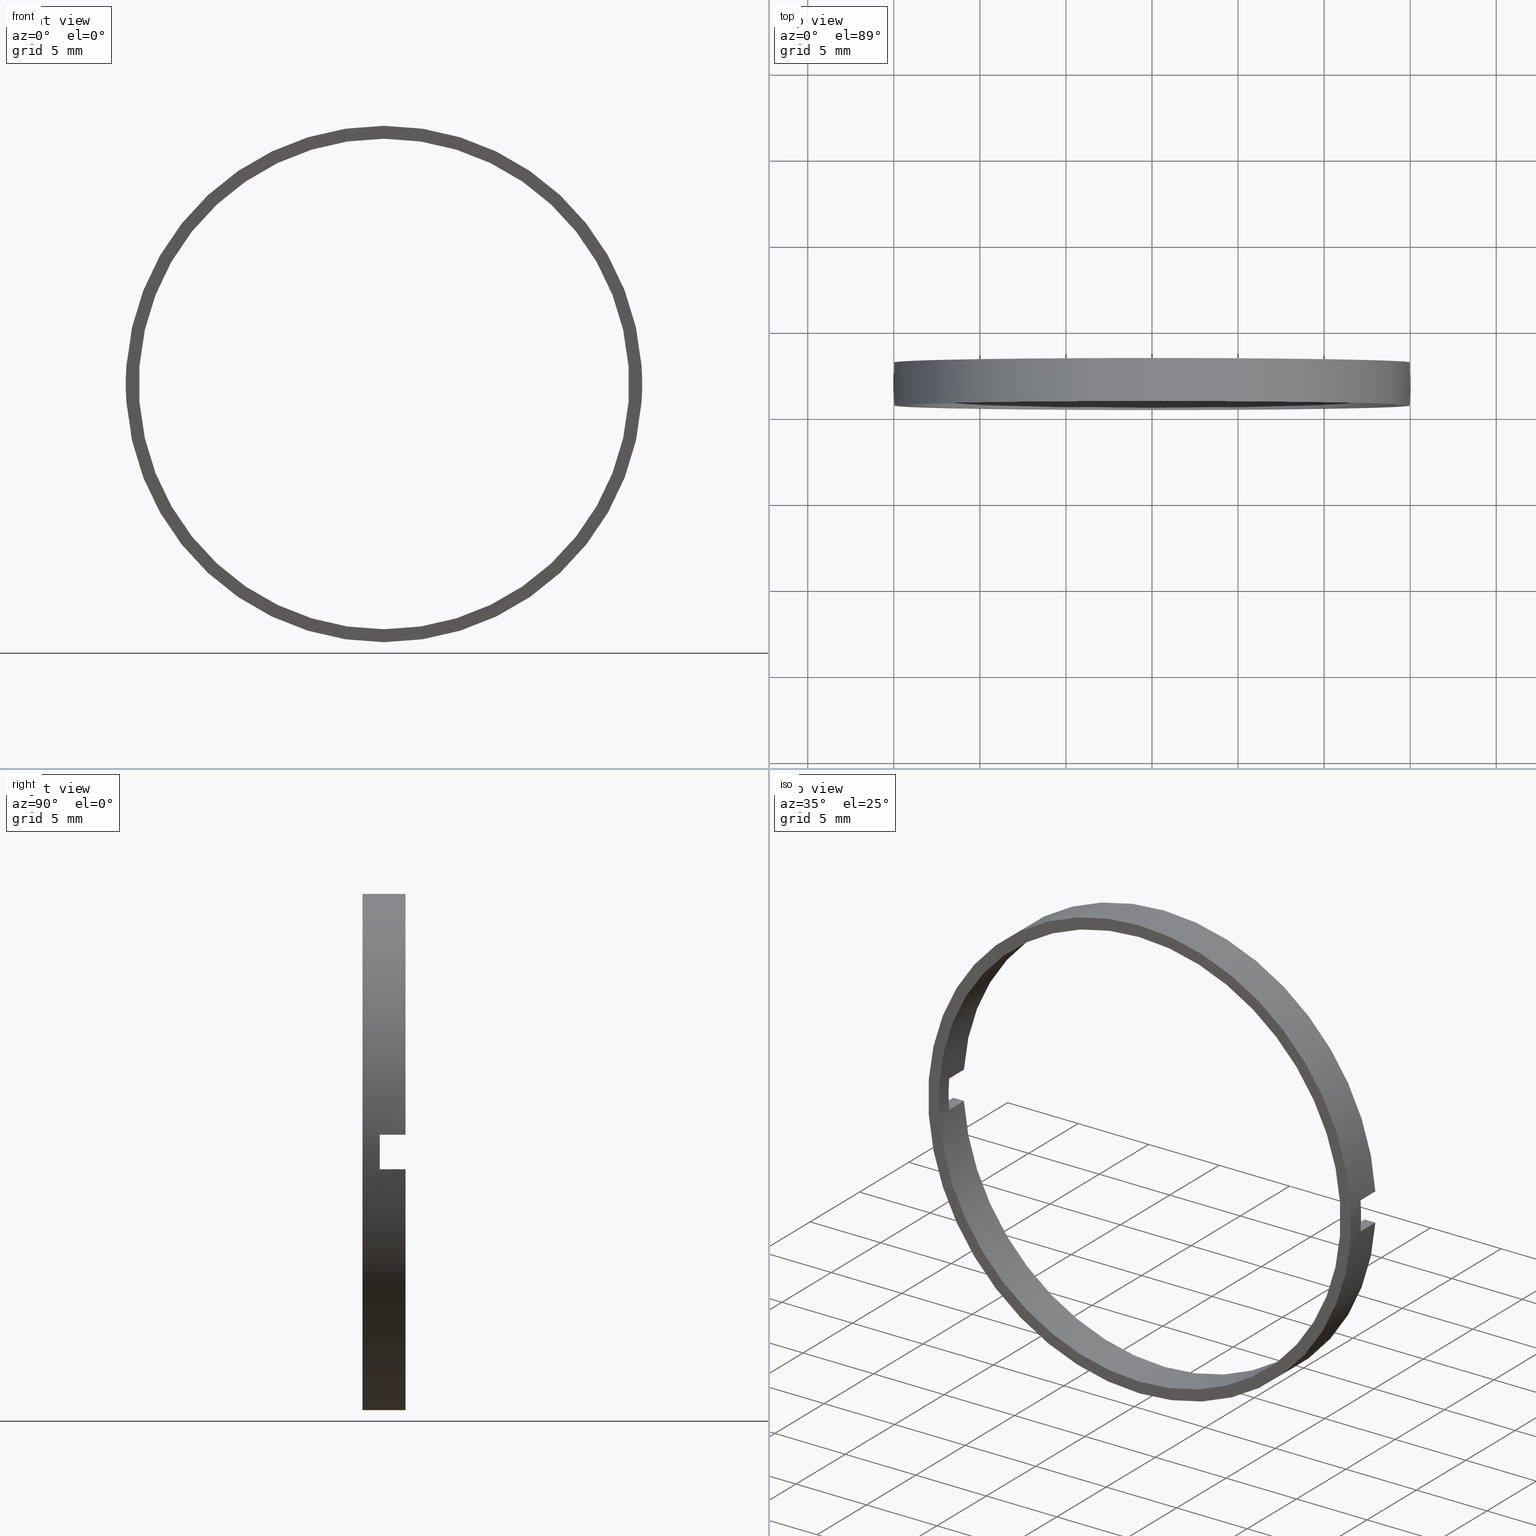
[diagram: canonical four-view strip — front | top / right | iso, engineering-drawing reading convention]
A machine part, canonical four-view strip (front | top / right | iso — engineering-drawing reading convention). The complete STEP part file that produces these views, byte-faithful:
ISO-10303-21;
HEADER;
FILE_DESCRIPTION (( 'STEP AP214' ),
    '1' );
FILE_NAME ('514007.STEP',
    '2019-09-18T06:27:31',
    ( '' ),
    ( '' ),
    'SwSTEP 2.0',
    'SolidWorks 2016',
    '' );
FILE_SCHEMA (( 'AUTOMOTIVE_DESIGN' ));
ENDSEC;

DATA;
#1 = EDGE_CURVE ( 'NONE', #409, #463, #205, .T. ) ;
#2 = AXIS2_PLACEMENT_3D ( 'NONE', #132, #398, #504 ) ;
#3 = CARTESIAN_POINT ( 'NONE',  ( 0.0000000000000000000, -4.464249787179428900, 0.0000000000000000000 ) ) ;
#4 = PLANE ( 'NONE',  #155 ) ;
#5 = EDGE_LOOP ( 'NONE', ( #47, #425, #215, #98, #258, #400, #200, #352 ) ) ;
#6 = ORIENTED_EDGE ( 'NONE', *, *, #372, .T. ) ;
#7 = CARTESIAN_POINT ( 'NONE',  ( 0.0000000000000000000, -1.964249787179434000, 0.0000000000000000000 ) ) ;
#8 =( GEOMETRIC_REPRESENTATION_CONTEXT ( 3 ) GLOBAL_UNCERTAINTY_ASSIGNED_CONTEXT ( ( #176 ) ) GLOBAL_UNIT_ASSIGNED_CONTEXT ( ( #211, #182, #253 ) ) REPRESENTATION_CONTEXT ( 'NONE', 'WORKASPACE' ) );
#9 = EDGE_CURVE ( 'NONE', #313, #32, #411, .T. ) ;
#10 = CIRCLE ( 'NONE', #138, 14.25000000000000700 ) ;
#11 = CARTESIAN_POINT ( 'NONE',  ( 14.96662954709577200, 56.26084262701361600, 1.000000000000000000 ) ) ;
#12 = DIRECTION ( 'NONE',  ( 0.0000000000000000000, 0.0000000000000000000, 1.000000000000000000 ) ) ;
#13 = FILL_AREA_STYLE_COLOUR ( '', #22 ) ;
#14 = CARTESIAN_POINT ( 'NONE',  ( 14.21486897582950500, 56.26084262701361600, -1.000000000000000000 ) ) ;
#15 = PLANE ( 'NONE',  #378 ) ;
#16 = EDGE_LOOP ( 'NONE', ( #266, #489, #267, #38, #197, #242 ) ) ;
#17 = CARTESIAN_POINT ( 'NONE',  ( -26.85254027261461800, -3.464249787179431100, -1.000000000000000000 ) ) ;
#18 = ADVANCED_FACE ( 'NONE', ( #239 ), #15, .T. ) ;
#19 = CARTESIAN_POINT ( 'NONE',  ( 0.0000000000000000000, -3.464249787179431100, 0.0000000000000000000 ) ) ;
#20 =( NAMED_UNIT ( * ) PLANE_ANGLE_UNIT ( ) SI_UNIT ( $, .RADIAN. ) );
#21 = FACE_OUTER_BOUND ( 'NONE', #16, .T. ) ;
#22 = COLOUR_RGB ( '',1.000000000000000000, 1.000000000000000000, 1.000000000000000000 ) ;
#23 = VERTEX_POINT ( 'NONE', #315 ) ;
#24 = CIRCLE ( 'NONE', #81, 14.25000000000000700 ) ;
#25 = DIRECTION ( 'NONE',  ( 0.0000000000000000000, 1.000000000000000000, 0.0000000000000000000 ) ) ;
#26 = VECTOR ( 'NONE', #280, 1000.000000000000000 ) ;
#27 = PRESENTATION_STYLE_ASSIGNMENT (( #165 ) ) ;
#28 =( NAMED_UNIT ( * ) SI_UNIT ( $, .STERADIAN. ) SOLID_ANGLE_UNIT ( ) );
#29 = VERTEX_POINT ( 'NONE', #399 ) ;
#30 = PRESENTATION_LAYER_ASSIGNMENT (  '', '', ( #226 ) ) ;
#31 = EDGE_CURVE ( 'NONE', #291, #50, #198, .T. ) ;
#32 = VERTEX_POINT ( 'NONE', #247 ) ;
#33 = CARTESIAN_POINT ( 'NONE',  ( 0.0000000000000000000, 56.26084262701361600, 0.0000000000000000000 ) ) ;
#34 = EDGE_CURVE ( 'NONE', #463, #409, #164, .T. ) ;
#35 = AXIS2_PLACEMENT_3D ( 'NONE', #459, #264, #149 ) ;
#36 = CYLINDRICAL_SURFACE ( 'NONE', #263, 14.25000000000000700 ) ;
#37 = CARTESIAN_POINT ( 'NONE',  ( -14.96662954709577100, -3.464249787179428400, -0.9999999999999995600 ) ) ;
#38 = ORIENTED_EDGE ( 'NONE', *, *, #77, .F. ) ;
#39 = AXIS2_PLACEMENT_3D ( 'NONE', #147, #416, #326 ) ;
#40 = VECTOR ( 'NONE', #442, 1000.000000000000000 ) ;
#41 = EDGE_CURVE ( 'NONE', #23, #32, #469, .T. ) ;
#42 = ORIENTED_EDGE ( 'NONE', *, *, #322, .F. ) ;
#43 = EDGE_CURVE ( 'NONE', #63, #203, #346, .T. ) ;
#44 = CIRCLE ( 'NONE', #57, 15.00000000000000700 ) ;
#45 = DIRECTION ( 'NONE',  ( 0.0000000000000000000, 0.0000000000000000000, 1.000000000000000000 ) ) ;
#46 = ORIENTED_EDGE ( 'NONE', *, *, #380, .T. ) ;
#47 = ORIENTED_EDGE ( 'NONE', *, *, #380, .F. ) ;
#48 = CARTESIAN_POINT ( 'NONE',  ( -26.85254027261461800, -3.464249787179431100, -1.000000000000000000 ) ) ;
#49 = DIRECTION ( 'NONE',  ( 0.0000000000000000000, -0.0000000000000000000, -1.000000000000000000 ) ) ;
#50 = VERTEX_POINT ( 'NONE', #51 ) ;
#51 = CARTESIAN_POINT ( 'NONE',  ( 0.0000000000000000000, -1.964249787179434000, 14.25000000000000700 ) ) ;
#52 = DIRECTION ( 'NONE',  ( 0.0000000000000000000, 0.0000000000000000000, 1.000000000000000000 ) ) ;
#53 = EDGE_CURVE ( 'NONE', #194, #108, #302, .T. ) ;
#54 = CARTESIAN_POINT ( 'NONE',  ( -26.85254027261461800, -1.964249787179430900, -1.000000000000000000 ) ) ;
#55 = COLOUR_RGB ( '',1.000000000000000000, 1.000000000000000000, 1.000000000000000000 ) ;
#56 = EDGE_CURVE ( 'NONE', #365, #308, #433, .T. ) ;
#57 = AXIS2_PLACEMENT_3D ( 'NONE', #334, #359, #52 ) ;
#58 = FILL_AREA_STYLE ('',( #467 ) ) ;
#59 = CARTESIAN_POINT ( 'NONE',  ( 0.0000000000000000000, -3.464249787179428400, 0.0000000000000000000 ) ) ;
#60 = DIRECTION ( 'NONE',  ( 0.0000000000000000000, -0.0000000000000000000, -1.000000000000000000 ) ) ;
#61 = UNCERTAINTY_MEASURE_WITH_UNIT (LENGTH_MEASURE( 1.000000000000000100E-005 ), #257, 'distance_accuracy_value', 'NONE');
#62 = APPLICATION_CONTEXT ( 'automotive_design' ) ;
#63 = VERTEX_POINT ( 'NONE', #169 ) ;
#64 = DIRECTION ( 'NONE',  ( -0.0000000000000000000, 1.000000000000000000, -0.0000000000000000000 ) ) ;
#65 = DIRECTION ( 'NONE',  ( 0.0000000000000000000, 0.0000000000000000000, 1.000000000000000000 ) ) ;
#66 = CARTESIAN_POINT ( 'NONE',  ( 14.21486897582950300, -3.464249787179428400, -0.9999999999999995600 ) ) ;
#67 = LINE ( 'NONE', #259, #344 ) ;
#68 = CARTESIAN_POINT ( 'NONE',  ( 14.21486897582950300, -3.464249787179428400, 0.9999999999999995600 ) ) ;
#69 = DIRECTION ( 'NONE',  ( 1.000000000000000000, 0.0000000000000000000, 0.0000000000000000000 ) ) ;
#70 = CARTESIAN_POINT ( 'NONE',  ( -26.85254027261461800, -3.464249787179431100, 1.000000000000000000 ) ) ;
#71 = ORIENTED_EDGE ( 'NONE', *, *, #9, .T. ) ;
#72 = MECHANICAL_DESIGN_GEOMETRIC_PRESENTATION_REPRESENTATION (  '', ( #465 ), #335 ) ;
#73 = FACE_OUTER_BOUND ( 'NONE', #395, .T. ) ;
#74 = ORIENTED_EDGE ( 'NONE', *, *, #110, .F. ) ;
#75 = EDGE_CURVE ( 'NONE', #379, #291, #256, .T. ) ;
#76 = FACE_OUTER_BOUND ( 'NONE', #5, .T. ) ;
#77 = EDGE_CURVE ( 'NONE', #50, #63, #24, .T. ) ;
#78 = PRODUCT_DEFINITION_FORMATION_WITH_SPECIFIED_SOURCE ( '�κ�', '', #167, .NOT_KNOWN. ) ;
#79 = AXIS2_PLACEMENT_3D ( 'NONE', #268, #25, #65 ) ;
#80 = ORIENTED_EDGE ( 'NONE', *, *, #303, .F. ) ;
#81 = AXIS2_PLACEMENT_3D ( 'NONE', #7, #347, #12 ) ;
#82 = LINE ( 'NONE', #166, #196 ) ;
#83 = ORIENTED_EDGE ( 'NONE', *, *, #301, .F. ) ;
#84 = SURFACE_SIDE_STYLE ('',( #119 ) ) ;
#85 = ORIENTED_EDGE ( 'NONE', *, *, #159, .T. ) ;
#86 = EDGE_CURVE ( 'NONE', #379, #152, #10, .T. ) ;
#87 = DIRECTION ( 'NONE',  ( 0.0000000000000000000, -1.000000000000000000, 0.0000000000000000000 ) ) ;
#88 = EDGE_LOOP ( 'NONE', ( #387, #502, #330, #145 ) ) ;
#89 = PLANE ( 'NONE',  #356 ) ;
#90 = SURFACE_STYLE_USAGE ( .BOTH. , #448 ) ;
#91 = DIRECTION ( 'NONE',  ( -0.0000000000000000000, 1.000000000000000000, -0.0000000000000000000 ) ) ;
#92 = FILL_AREA_STYLE ('',( #288 ) ) ;
#93 = MECHANICAL_DESIGN_GEOMETRIC_PRESENTATION_REPRESENTATION (  '', ( #226 ), #345 ) ;
#94 = EDGE_LOOP ( 'NONE', ( #121, #438, #449, #451 ) ) ;
#95 = DIRECTION ( 'NONE',  ( 0.0000000000000000000, 0.0000000000000000000, 1.000000000000000000 ) ) ;
#96 = FACE_BOUND ( 'NONE', #342, .T. ) ;
#97 = ADVANCED_FACE ( 'NONE', ( #218 ), #4, .F. ) ;
#98 = ORIENTED_EDGE ( 'NONE', *, *, #190, .T. ) ;
#99 = DIRECTION ( 'NONE',  ( -0.0000000000000000000, 1.000000000000000000, -0.0000000000000000000 ) ) ;
#100 = CARTESIAN_POINT ( 'NONE',  ( 0.0000000000000000000, 0.0000000000000000000, 0.0000000000000000000 ) ) ;
#101 = EDGE_LOOP ( 'NONE', ( #369, #363, #296, #116 ) ) ;
#102 = CARTESIAN_POINT ( 'NONE',  ( 14.96662954709577200, 56.26084262701361600, -1.000000000000000000 ) ) ;
#103 = CARTESIAN_POINT ( 'NONE',  ( 0.0000000000000000000, 56.26084262701361600, 0.0000000000000000000 ) ) ;
#104 = STYLED_ITEM ( 'NONE', ( #27 ), #255 ) ;
#105 = DIRECTION ( 'NONE',  ( 0.0000000000000000000, 0.0000000000000000000, 1.000000000000000000 ) ) ;
#106 = EDGE_CURVE ( 'NONE', #209, #313, #299, .T. ) ;
#107 = CARTESIAN_POINT ( 'NONE',  ( -14.21486897582950500, 56.26084262701361600, -1.000000000000000000 ) ) ;
#108 = VERTEX_POINT ( 'NONE', #276 ) ;
#109 = DIRECTION ( 'NONE',  ( -0.0000000000000000000, 1.000000000000000000, -0.0000000000000000000 ) ) ;
#110 = EDGE_CURVE ( 'NONE', #339, #454, #143, .T. ) ;
#111 = AXIS2_PLACEMENT_3D ( 'NONE', #185, #217, #222 ) ;
#112 = DIRECTION ( 'NONE',  ( 1.000000000000000000, 0.0000000000000000000, 0.0000000000000000000 ) ) ;
#113 = LINE ( 'NONE', #285, #336 ) ;
#114 = ORIENTED_EDGE ( 'NONE', *, *, #161, .F. ) ;
#115 = MECHANICAL_DESIGN_GEOMETRIC_PRESENTATION_REPRESENTATION (  '', ( #325 ), #158 ) ;
#116 = ORIENTED_EDGE ( 'NONE', *, *, #260, .T. ) ;
#117 = AXIS2_PLACEMENT_3D ( 'NONE', #283, #91, #441 ) ;
#118 = LINE ( 'NONE', #208, #417 ) ;
#119 = SURFACE_STYLE_FILL_AREA ( #58 ) ;
#120 = PLANE ( 'NONE',  #317 ) ;
#121 = ORIENTED_EDGE ( 'NONE', *, *, #260, .F. ) ;
#122 = AXIS2_PLACEMENT_3D ( 'NONE', #100, #214, #353 ) ;
#123 = VECTOR ( 'NONE', #435, 1000.000000000000000 ) ;
#124 = CARTESIAN_POINT ( 'NONE',  ( 14.25000000000000700, -1.964249787179430900, 0.0000000000000000000 ) ) ;
#125 = FACE_OUTER_BOUND ( 'NONE', #137, .T. ) ;
#126 = PLANE ( 'NONE',  #371 ) ;
#127 = CLOSED_SHELL ( 'NONE', ( #286, #450, #445, #479, #175, #316, #250, #358, #404, #361, #97, #212, #18 ) ) ;
#128 = DIRECTION ( 'NONE',  ( 1.000000000000000000, 0.0000000000000000000, 0.0000000000000000000 ) ) ;
#129 = ORIENTED_EDGE ( 'NONE', *, *, #294, .F. ) ;
#130 =( NAMED_UNIT ( * ) PLANE_ANGLE_UNIT ( ) SI_UNIT ( $, .RADIAN. ) );
#131 = EDGE_CURVE ( 'NONE', #194, #50, #82, .T. ) ;
#132 = CARTESIAN_POINT ( 'NONE',  ( 0.0000000000000000000, -4.464249787179428900, 0.0000000000000000000 ) ) ;
#133 = DIRECTION ( 'NONE',  ( -0.0000000000000000000, 1.000000000000000000, -0.0000000000000000000 ) ) ;
#134 = FACE_OUTER_BOUND ( 'NONE', #88, .T. ) ;
#135 = DIRECTION ( 'NONE',  ( -1.000000000000000000, -0.0000000000000000000, -0.0000000000000000000 ) ) ;
#136 = DIRECTION ( 'NONE',  ( 0.0000000000000000000, 0.0000000000000000000, 1.000000000000000000 ) ) ;
#137 = EDGE_LOOP ( 'NONE', ( #482, #186 ) ) ;
#138 = AXIS2_PLACEMENT_3D ( 'NONE', #475, #274, #45 ) ;
#139 = ORIENTED_EDGE ( 'NONE', *, *, #312, .F. ) ;
#140 = CARTESIAN_POINT ( 'NONE',  ( 0.0000000000000000000, -1.964249787179434000, 15.00000000000000700 ) ) ;
#141 = VECTOR ( 'NONE', #284, 1000.000000000000000 ) ;
#142 = SURFACE_SIDE_STYLE ('',( #390 ) ) ;
#143 = CIRCLE ( 'NONE', #419, 15.00000000000000700 ) ;
#144 = DIRECTION ( 'NONE',  ( 0.0000000000000000000, 0.0000000000000000000, 1.000000000000000000 ) ) ;
#145 = ORIENTED_EDGE ( 'NONE', *, *, #303, .T. ) ;
#146 = DIRECTION ( 'NONE',  ( -0.0000000000000000000, 1.000000000000000000, -0.0000000000000000000 ) ) ;
#147 = CARTESIAN_POINT ( 'NONE',  ( 14.25000000000000700, -4.464249787179429800, 0.0000000000000000000 ) ) ;
#148 = LINE ( 'NONE', #453, #333 ) ;
#149 = DIRECTION ( 'NONE',  ( 0.0000000000000000000, 0.0000000000000000000, 1.000000000000000000 ) ) ;
#150 = PLANE ( 'NONE',  #421 ) ;
#151 = SURFACE_STYLE_FILL_AREA ( #483 ) ;
#152 = VERTEX_POINT ( 'NONE', #350 ) ;
#153 = CARTESIAN_POINT ( 'NONE',  ( 1.836970198721030800E-015, 56.26084262701361600, -15.00000000000000700 ) ) ;
#154 = ORIENTED_EDGE ( 'NONE', *, *, #75, .F. ) ;
#155 = AXIS2_PLACEMENT_3D ( 'NONE', #243, #204, #128 ) ;
#156 = FACE_OUTER_BOUND ( 'NONE', #94, .T. ) ;
#157 = VERTEX_POINT ( 'NONE', #309 ) ;
#158 =( GEOMETRIC_REPRESENTATION_CONTEXT ( 3 ) GLOBAL_UNCERTAINTY_ASSIGNED_CONTEXT ( ( #413 ) ) GLOBAL_UNIT_ASSIGNED_CONTEXT ( ( #281, #130, #254 ) ) REPRESENTATION_CONTEXT ( 'NONE', 'WORKASPACE' ) );
#159 = EDGE_CURVE ( 'NONE', #318, #203, #183, .T. ) ;
#160 = CIRCLE ( 'NONE', #271, 15.00000000000000700 ) ;
#161 = EDGE_CURVE ( 'NONE', #365, #454, #341, .T. ) ;
#162 = VERTEX_POINT ( 'NONE', #306 ) ;
#163 = DIRECTION ( 'NONE',  ( 0.0000000000000000000, 0.0000000000000000000, 1.000000000000000000 ) ) ;
#164 = CIRCLE ( 'NONE', #224, 15.00000000000000700 ) ;
#165 = SURFACE_STYLE_USAGE ( .BOTH. , #84 ) ;
#166 = CARTESIAN_POINT ( 'NONE',  ( 0.0000000000000000000, 56.26084262701361600, 14.25000000000000700 ) ) ;
#167 = PRODUCT ( '514007', '514007', '', ( #484 ) ) ;
#168 = DIRECTION ( 'NONE',  ( -1.000000000000000000, 0.0000000000000000000, -0.0000000000000000000 ) ) ;
#169 = CARTESIAN_POINT ( 'NONE',  ( 14.21486897582950300, -1.964249787179434000, 0.9999999999999995600 ) ) ;
#170 = CARTESIAN_POINT ( 'NONE',  ( 0.0000000000000000000, -4.464249787179428900, 0.0000000000000000000 ) ) ;
#171 = CIRCLE ( 'NONE', #35, 14.25000000000000700 ) ;
#172 = DIRECTION ( 'NONE',  ( -0.0000000000000000000, 1.000000000000000000, -0.0000000000000000000 ) ) ;
#173 = DIRECTION ( 'NONE',  ( 0.0000000000000000000, -0.0000000000000000000, 1.000000000000000000 ) ) ;
#174 =( LENGTH_UNIT ( ) NAMED_UNIT ( * ) SI_UNIT ( .MILLI., .METRE. ) );
#175 = ADVANCED_FACE ( 'NONE', ( #73 ), #120, .F. ) ;
#176 = UNCERTAINTY_MEASURE_WITH_UNIT (LENGTH_MEASURE( 1.000000000000000100E-005 ), #211, 'distance_accuracy_value', 'NONE');
#177 = DIRECTION ( 'NONE',  ( 0.0000000000000000000, -1.000000000000000000, 0.0000000000000000000 ) ) ;
#178 = EDGE_CURVE ( 'NONE', #318, #209, #381, .T. ) ;
#179 = PRODUCT_DEFINITION_CONTEXT ( 'detailed design', #444, 'design' ) ;
#180 = ORIENTED_EDGE ( 'NONE', *, *, #216, .T. ) ;
#181 = DIRECTION ( 'NONE',  ( -0.0000000000000000000, -1.000000000000000000, -0.0000000000000000000 ) ) ;
#182 =( NAMED_UNIT ( * ) PLANE_ANGLE_UNIT ( ) SI_UNIT ( $, .RADIAN. ) );
#183 = LINE ( 'NONE', #11, #26 ) ;
#184 = CARTESIAN_POINT ( 'NONE',  ( 14.96662954709577100, -3.464249787179428400, -0.9999999999999995600 ) ) ;
#185 = CARTESIAN_POINT ( 'NONE',  ( 0.0000000000000000000, -1.964249787179434000, 0.0000000000000000000 ) ) ;
#186 = ORIENTED_EDGE ( 'NONE', *, *, #1, .F. ) ;
#187 = DIRECTION ( 'NONE',  ( 0.0000000000000000000, 0.0000000000000000000, -1.000000000000000000 ) ) ;
#188 = CARTESIAN_POINT ( 'NONE',  ( 0.0000000000000000000, -4.464249787179428900, 14.25000000000000700 ) ) ;
#189 = CYLINDRICAL_SURFACE ( 'NONE', #245, 14.25000000000000700 ) ;
#190 = EDGE_CURVE ( 'NONE', #29, #152, #436, .T. ) ;
#191 = DIRECTION ( 'NONE',  ( 0.0000000000000000000, 0.0000000000000000000, 1.000000000000000000 ) ) ;
#192 = EDGE_CURVE ( 'NONE', #339, #498, #202, .T. ) ;
#193 = DIRECTION ( 'NONE',  ( 1.000000000000000000, 0.0000000000000000000, 0.0000000000000000000 ) ) ;
#194 = VERTEX_POINT ( 'NONE', #188 ) ;
#195 = DIRECTION ( 'NONE',  ( -0.0000000000000000000, 1.000000000000000000, -0.0000000000000000000 ) ) ;
#196 = VECTOR ( 'NONE', #396, 1000.000000000000000 ) ;
#197 = ORIENTED_EDGE ( 'NONE', *, *, #31, .F. ) ;
#198 = CIRCLE ( 'NONE', #117, 14.25000000000000700 ) ;
#199 = VECTOR ( 'NONE', #109, 1000.000000000000000 ) ;
#200 = ORIENTED_EDGE ( 'NONE', *, *, #31, .T. ) ;
#201 = CARTESIAN_POINT ( 'NONE',  ( 0.0000000000000000000, -3.464249787179428400, 0.0000000000000000000 ) ) ;
#202 = LINE ( 'NONE', #373, #231 ) ;
#203 = VERTEX_POINT ( 'NONE', #332 ) ;
#204 = DIRECTION ( 'NONE',  ( -0.0000000000000000000, 0.0000000000000000000, 1.000000000000000000 ) ) ;
#205 = CIRCLE ( 'NONE', #2, 15.00000000000000700 ) ;
#206 = DIRECTION ( 'NONE',  ( 0.0000000000000000000, -1.000000000000000000, 0.0000000000000000000 ) ) ;
#207 = CARTESIAN_POINT ( 'NONE',  ( -14.96662954709577100, -3.464249787179428400, 0.9999999999999995600 ) ) ;
#208 = CARTESIAN_POINT ( 'NONE',  ( 0.0000000000000000000, 56.26084262701361600, 15.00000000000000700 ) ) ;
#209 = VERTEX_POINT ( 'NONE', #184 ) ;
#210 = CARTESIAN_POINT ( 'NONE',  ( -14.96662954709577600, -1.964249787179430900, -1.000000000000000000 ) ) ;
#211 =( LENGTH_UNIT ( ) NAMED_UNIT ( * ) SI_UNIT ( .MILLI., .METRE. ) );
#212 = ADVANCED_FACE ( 'NONE', ( #156 ), #487, .F. ) ;
#213 = DIRECTION ( 'NONE',  ( -0.0000000000000000000, 1.000000000000000000, -0.0000000000000000000 ) ) ;
#214 = DIRECTION ( 'NONE',  ( 0.0000000000000000000, 0.0000000000000000000, 1.000000000000000000 ) ) ;
#215 = ORIENTED_EDGE ( 'NONE', *, *, #322, .T. ) ;
#216 = EDGE_CURVE ( 'NONE', #23, #209, #500, .T. ) ;
#217 = DIRECTION ( 'NONE',  ( -0.0000000000000000000, 1.000000000000000000, -0.0000000000000000000 ) ) ;
#218 = FACE_OUTER_BOUND ( 'NONE', #230, .T. ) ;
#219 = SURFACE_STYLE_USAGE ( .BOTH. , #142 ) ;
#220 = ORIENTED_EDGE ( 'NONE', *, *, #131, .T. ) ;
#221 = EDGE_LOOP ( 'NONE', ( #424, #237, #505, #293 ) ) ;
#222 = DIRECTION ( 'NONE',  ( 0.0000000000000000000, 0.0000000000000000000, 1.000000000000000000 ) ) ;
#223 = CARTESIAN_POINT ( 'NONE',  ( 0.0000000000000000000, -3.464249787179431100, 0.0000000000000000000 ) ) ;
#224 = AXIS2_PLACEMENT_3D ( 'NONE', #238, #236, #241 ) ;
#225 = FACE_OUTER_BOUND ( 'NONE', #221, .T. ) ;
#226 = STYLED_ITEM ( 'NONE', ( #305 ), #450 ) ;
#227 = EDGE_CURVE ( 'NONE', #108, #162, #423, .T. ) ;
#228 = DIRECTION ( 'NONE',  ( -0.0000000000000000000, 0.0000000000000000000, 1.000000000000000000 ) ) ;
#229 = ORIENTED_EDGE ( 'NONE', *, *, #455, .F. ) ;
#230 = EDGE_LOOP ( 'NONE', ( #287, #154, #277, #114 ) ) ;
#231 = VECTOR ( 'NONE', #64, 1000.000000000000000 ) ;
#232 = COLOUR_RGB ( '',1.000000000000000000, 1.000000000000000000, 1.000000000000000000 ) ;
#233 = ORIENTED_EDGE ( 'NONE', *, *, #159, .F. ) ;
#234 = ORIENTED_EDGE ( 'NONE', *, *, #53, .F. ) ;
#235 = LINE ( 'NONE', #337, #261 ) ;
#236 = DIRECTION ( 'NONE',  ( -0.0000000000000000000, 1.000000000000000000, -0.0000000000000000000 ) ) ;
#237 = ORIENTED_EDGE ( 'NONE', *, *, #9, .F. ) ;
#238 = CARTESIAN_POINT ( 'NONE',  ( 0.0000000000000000000, -4.464249787179428900, 0.0000000000000000000 ) ) ;
#239 = FACE_OUTER_BOUND ( 'NONE', #101, .T. ) ;
#240 = DIRECTION ( 'NONE',  ( -0.0000000000000000000, 1.000000000000000000, -0.0000000000000000000 ) ) ;
#241 = DIRECTION ( 'NONE',  ( 0.0000000000000000000, 0.0000000000000000000, 1.000000000000000000 ) ) ;
#242 = ORIENTED_EDGE ( 'NONE', *, *, #343, .F. ) ;
#243 = CARTESIAN_POINT ( 'NONE',  ( -26.85254027261461800, -3.464249787179431100, 1.000000000000000000 ) ) ;
#244 = DIRECTION ( 'NONE',  ( 0.0000000000000000000, 1.000000000000000000, 0.0000000000000000000 ) ) ;
#245 = AXIS2_PLACEMENT_3D ( 'NONE', #103, #491, #144 ) ;
#246 = DIRECTION ( 'NONE',  ( 0.0000000000000000000, 0.0000000000000000000, 1.000000000000000000 ) ) ;
#247 = CARTESIAN_POINT ( 'NONE',  ( 14.21486897582950300, -1.964249787179434000, -0.9999999999999995600 ) ) ;
#248 = VECTOR ( 'NONE', #69, 1000.000000000000000 ) ;
#249 = DIRECTION ( 'NONE',  ( -0.0000000000000000000, 1.000000000000000000, -0.0000000000000000000 ) ) ;
#250 = ADVANCED_FACE ( 'NONE', ( #125, #96 ), #368, .F. ) ;
#251 = CARTESIAN_POINT ( 'NONE',  ( 1.836970198721030800E-015, -4.464249787179428900, -15.00000000000000700 ) ) ;
#252 = AXIS2_PLACEMENT_3D ( 'NONE', #403, #311, #95 ) ;
#253 =( NAMED_UNIT ( * ) SI_UNIT ( $, .STERADIAN. ) SOLID_ANGLE_UNIT ( ) );
#254 =( NAMED_UNIT ( * ) SI_UNIT ( $, .STERADIAN. ) SOLID_ANGLE_UNIT ( ) );
#255 = ADVANCED_BREP_SHAPE_REPRESENTATION ( '514007', ( #270, #122 ), #385 ) ;
#256 = LINE ( 'NONE', #471, #123 ) ;
#257 =( LENGTH_UNIT ( ) NAMED_UNIT ( * ) SI_UNIT ( .MILLI., .METRE. ) );
#258 = ORIENTED_EDGE ( 'NONE', *, *, #86, .F. ) ;
#259 = CARTESIAN_POINT ( 'NONE',  ( -26.85254027261461800, -3.464249787179431100, 1.000000000000000000 ) ) ;
#260 = EDGE_CURVE ( 'NONE', #152, #339, #275, .T. ) ;
#261 = VECTOR ( 'NONE', #193, 1000.000000000000000 ) ;
#262 = DIRECTION ( 'NONE',  ( 0.0000000000000000000, 1.000000000000000000, 0.0000000000000000000 ) ) ;
#263 = AXIS2_PLACEMENT_3D ( 'NONE', #33, #195, #376 ) ;
#264 = DIRECTION ( 'NONE',  ( -0.0000000000000000000, 1.000000000000000000, -0.0000000000000000000 ) ) ;
#265 = ORIENTED_EDGE ( 'NONE', *, *, #77, .T. ) ;
#266 = ORIENTED_EDGE ( 'NONE', *, *, #56, .T. ) ;
#267 = ORIENTED_EDGE ( 'NONE', *, *, #43, .F. ) ;
#268 = CARTESIAN_POINT ( 'NONE',  ( 0.0000000000000000000, -3.464249787179428400, 0.0000000000000000000 ) ) ;
#269 = CYLINDRICAL_SURFACE ( 'NONE', #331, 15.00000000000000700 ) ;
#270 = MANIFOLD_SOLID_BREP ( '�г�-����1', #127 ) ;
#271 = AXIS2_PLACEMENT_3D ( 'NONE', #323, #146, #105 ) ;
#272 = ORIENTED_EDGE ( 'NONE', *, *, #496, .F. ) ;
#273 = CARTESIAN_POINT ( 'NONE',  ( 0.0000000000000000000, -1.964249787179434000, 0.0000000000000000000 ) ) ;
#274 = DIRECTION ( 'NONE',  ( -0.0000000000000000000, -1.000000000000000000, -0.0000000000000000000 ) ) ;
#275 = LINE ( 'NONE', #457, #367 ) ;
#276 = CARTESIAN_POINT ( 'NONE',  ( 1.745121688784979000E-015, -4.464249787179428900, -14.25000000000000700 ) ) ;
#277 = ORIENTED_EDGE ( 'NONE', *, *, #357, .F. ) ;
#278 = CYLINDRICAL_SURFACE ( 'NONE', #252, 15.00000000000000700 ) ;
#279 = DIRECTION ( 'NONE',  ( 0.0000000000000000000, 0.0000000000000000000, 1.000000000000000000 ) ) ;
#280 = DIRECTION ( 'NONE',  ( -0.0000000000000000000, 1.000000000000000000, -0.0000000000000000000 ) ) ;
#281 =( LENGTH_UNIT ( ) NAMED_UNIT ( * ) SI_UNIT ( .MILLI., .METRE. ) );
#282 = FACE_OUTER_BOUND ( 'NONE', #329, .T. ) ;
#283 = CARTESIAN_POINT ( 'NONE',  ( 0.0000000000000000000, -1.964249787179434000, 0.0000000000000000000 ) ) ;
#284 = DIRECTION ( 'NONE',  ( -1.000000000000000000, -0.0000000000000000000, -0.0000000000000000000 ) ) ;
#285 = CARTESIAN_POINT ( 'NONE',  ( -26.85254027261461800, -1.964249787179430900, -1.000000000000000000 ) ) ;
#286 = ADVANCED_FACE ( 'NONE', ( #76 ), #189, .F. ) ;
#287 = ORIENTED_EDGE ( 'NONE', *, *, #343, .T. ) ;
#288 = FILL_AREA_STYLE_COLOUR ( '', #55 ) ;
#289 = CARTESIAN_POINT ( 'NONE',  ( -14.21486897582950300, -1.964249787179434000, 0.9999999999999995600 ) ) ;
#290 = DIRECTION ( 'NONE',  ( 0.0000000000000000000, -1.000000000000000000, 0.0000000000000000000 ) ) ;
#291 = VERTEX_POINT ( 'NONE', #289 ) ;
#292 = DIRECTION ( 'NONE',  ( -1.000000000000000000, 0.0000000000000000000, -0.0000000000000000000 ) ) ;
#293 = ORIENTED_EDGE ( 'NONE', *, *, #216, .F. ) ;
#294 = EDGE_CURVE ( 'NONE', #32, #162, #493, .T. ) ;
#295 = DIRECTION ( 'NONE',  ( 1.000000000000000000, 0.0000000000000000000, 0.0000000000000000000 ) ) ;
#296 = ORIENTED_EDGE ( 'NONE', *, *, #86, .T. ) ;
#297 = CARTESIAN_POINT ( 'NONE',  ( 0.0000000000000000000, -1.964249787179434000, 0.0000000000000000000 ) ) ;
#298 = ORIENTED_EDGE ( 'NONE', *, *, #386, .T. ) ;
#299 = LINE ( 'NONE', #48, #485 ) ;
#300 = EDGE_LOOP ( 'NONE', ( #304, #429, #298, #393, #383, #74, #506, #83 ) ) ;
#301 = EDGE_CURVE ( 'NONE', #157, #498, #160, .T. ) ;
#302 = CIRCLE ( 'NONE', #405, 14.25000000000000700 ) ;
#303 = EDGE_CURVE ( 'NONE', #338, #318, #67, .T. ) ;
#304 = ORIENTED_EDGE ( 'NONE', *, *, #382, .F. ) ;
#305 = PRESENTATION_STYLE_ASSIGNMENT (( #364 ) ) ;
#306 = CARTESIAN_POINT ( 'NONE',  ( 1.745121688784979000E-015, -1.964249787179434000, -14.25000000000000700 ) ) ;
#307 = DIRECTION ( 'NONE',  ( 0.0000000000000000000, 0.0000000000000000000, 1.000000000000000000 ) ) ;
#308 = VERTEX_POINT ( 'NONE', #140 ) ;
#309 = CARTESIAN_POINT ( 'NONE',  ( 1.836970198721030800E-015, -1.964249787179434000, -15.00000000000000700 ) ) ;
#310 = ORIENTED_EDGE ( 'NONE', *, *, #301, .T. ) ;
#311 = DIRECTION ( 'NONE',  ( -0.0000000000000000000, 1.000000000000000000, -0.0000000000000000000 ) ) ;
#312 = EDGE_CURVE ( 'NONE', #63, #338, #148, .T. ) ;
#313 = VERTEX_POINT ( 'NONE', #66 ) ;
#314 = ORIENTED_EDGE ( 'NONE', *, *, #34, .T. ) ;
#315 = CARTESIAN_POINT ( 'NONE',  ( 14.96662954709576000, -1.964249787179430900, -1.000000000000000000 ) ) ;
#316 = ADVANCED_FACE ( 'NONE', ( #282 ), #36, .F. ) ;
#317 = AXIS2_PLACEMENT_3D ( 'NONE', #124, #206, #49 ) ;
#318 = VERTEX_POINT ( 'NONE', #462 ) ;
#319 =( NAMED_UNIT ( * ) SI_UNIT ( $, .STERADIAN. ) SOLID_ANGLE_UNIT ( ) );
#320 = LINE ( 'NONE', #153, #199 ) ;
#321 = SURFACE_SIDE_STYLE ('',( #354 ) ) ;
#322 = EDGE_CURVE ( 'NONE', #162, #29, #171, .T. ) ;
#323 = CARTESIAN_POINT ( 'NONE',  ( 0.0000000000000000000, -1.964249787179434000, 0.0000000000000000000 ) ) ;
#324 = ORIENTED_EDGE ( 'NONE', *, *, #372, .F. ) ;
#325 = STYLED_ITEM ( 'NONE', ( #384 ), #479 ) ;
#326 = DIRECTION ( 'NONE',  ( 0.0000000000000000000, 0.0000000000000000000, 1.000000000000000000 ) ) ;
#327 = ORIENTED_EDGE ( 'NONE', *, *, #312, .T. ) ;
#328 = VECTOR ( 'NONE', #290, 1000.000000000000000 ) ;
#329 = EDGE_LOOP ( 'NONE', ( #422, #234, #220, #265, #327, #229, #71, #420 ) ) ;
#330 = ORIENTED_EDGE ( 'NONE', *, *, #455, .T. ) ;
#331 = AXIS2_PLACEMENT_3D ( 'NONE', #397, #249, #246 ) ;
#332 = CARTESIAN_POINT ( 'NONE',  ( 14.96662954709576000, -1.964249787179430900, 1.000000000000000000 ) ) ;
#333 = VECTOR ( 'NONE', #412, 1000.000000000000000 ) ;
#334 = CARTESIAN_POINT ( 'NONE',  ( 0.0000000000000000000, -1.964249787179434000, 0.0000000000000000000 ) ) ;
#335 =( GEOMETRIC_REPRESENTATION_CONTEXT ( 3 ) GLOBAL_UNCERTAINTY_ASSIGNED_CONTEXT ( ( #61 ) ) GLOBAL_UNIT_ASSIGNED_CONTEXT ( ( #257, #370, #28 ) ) REPRESENTATION_CONTEXT ( 'NONE', 'WORKASPACE' ) );
#336 = VECTOR ( 'NONE', #135, 1000.000000000000000 ) ;
#337 = CARTESIAN_POINT ( 'NONE',  ( -26.85254027261461800, -3.464249787179431100, 1.000000000000000000 ) ) ;
#338 = VERTEX_POINT ( 'NONE', #68 ) ;
#339 = VERTEX_POINT ( 'NONE', #37 ) ;
#340 = VECTOR ( 'NONE', #172, 1000.000000000000000 ) ;
#341 = LINE ( 'NONE', #437, #464 ) ;
#342 = EDGE_LOOP ( 'NONE', ( #415, #46 ) ) ;
#343 = EDGE_CURVE ( 'NONE', #365, #291, #478, .T. ) ;
#344 = VECTOR ( 'NONE', #295, 1000.000000000000000 ) ;
#345 =( GEOMETRIC_REPRESENTATION_CONTEXT ( 3 ) GLOBAL_UNCERTAINTY_ASSIGNED_CONTEXT ( ( #488 ) ) GLOBAL_UNIT_ASSIGNED_CONTEXT ( ( #355, #443, #439 ) ) REPRESENTATION_CONTEXT ( 'NONE', 'WORKASPACE' ) );
#346 = LINE ( 'NONE', #477, #40 ) ;
#347 = DIRECTION ( 'NONE',  ( -0.0000000000000000000, 1.000000000000000000, -0.0000000000000000000 ) ) ;
#348 = EDGE_CURVE ( 'NONE', #308, #203, #374, .T. ) ;
#349 = COLOUR_RGB ( '',1.000000000000000000, 1.000000000000000000, 1.000000000000000000 ) ;
#350 = CARTESIAN_POINT ( 'NONE',  ( -14.21486897582950300, -3.464249787179428400, -0.9999999999999995600 ) ) ;
#351 = UNCERTAINTY_MEASURE_WITH_UNIT (LENGTH_MEASURE( 1.000000000000000100E-005 ), #174, 'distance_accuracy_value', 'NONE');
#352 = ORIENTED_EDGE ( 'NONE', *, *, #131, .F. ) ;
#353 = DIRECTION ( 'NONE',  ( 1.000000000000000000, 0.0000000000000000000, 0.0000000000000000000 ) ) ;
#354 = SURFACE_STYLE_FILL_AREA ( #92 ) ;
#355 =( LENGTH_UNIT ( ) NAMED_UNIT ( * ) SI_UNIT ( .MILLI., .METRE. ) );
#356 = AXIS2_PLACEMENT_3D ( 'NONE', #17, #476, #168 ) ;
#357 = EDGE_CURVE ( 'NONE', #454, #379, #235, .T. ) ;
#358 = ADVANCED_FACE ( 'NONE', ( #134 ), #418, .T. ) ;
#359 = DIRECTION ( 'NONE',  ( -0.0000000000000000000, 1.000000000000000000, -0.0000000000000000000 ) ) ;
#360 = APPLICATION_PROTOCOL_DEFINITION ( 'draft international standard', 'automotive_design', 1998, #444 ) ;
#361 = ADVANCED_FACE ( 'NONE', ( #428 ), #150, .F. ) ;
#362 = AXIS2_PLACEMENT_3D ( 'NONE', #297, #497, #191 ) ;
#363 = ORIENTED_EDGE ( 'NONE', *, *, #357, .T. ) ;
#364 = SURFACE_STYLE_USAGE ( .BOTH. , #321 ) ;
#365 = VERTEX_POINT ( 'NONE', #499 ) ;
#366 = ORIENTED_EDGE ( 'NONE', *, *, #178, .F. ) ;
#367 = VECTOR ( 'NONE', #410, 1000.000000000000000 ) ;
#368 = PLANE ( 'NONE',  #39 ) ;
#369 = ORIENTED_EDGE ( 'NONE', *, *, #110, .T. ) ;
#370 =( NAMED_UNIT ( * ) PLANE_ANGLE_UNIT ( ) SI_UNIT ( $, .RADIAN. ) );
#371 = AXIS2_PLACEMENT_3D ( 'NONE', #480, #177, #60 ) ;
#372 = EDGE_CURVE ( 'NONE', #23, #157, #44, .T. ) ;
#373 = CARTESIAN_POINT ( 'NONE',  ( -14.96662954709577200, 56.26084262701361600, -1.000000000000000000 ) ) ;
#374 = CIRCLE ( 'NONE', #362, 15.00000000000000700 ) ;
#375 = CARTESIAN_POINT ( 'NONE',  ( 1.745121688784979000E-015, 56.26084262701361600, -14.25000000000000700 ) ) ;
#376 = DIRECTION ( 'NONE',  ( 0.0000000000000000000, 0.0000000000000000000, 1.000000000000000000 ) ) ;
#377 = CARTESIAN_POINT ( 'NONE',  ( -26.85254027261461800, -1.964249787179430900, 1.000000000000000000 ) ) ;
#378 = AXIS2_PLACEMENT_3D ( 'NONE', #19, #244, #173 ) ;
#379 = VERTEX_POINT ( 'NONE', #501 ) ;
#380 = EDGE_CURVE ( 'NONE', #108, #194, #466, .T. ) ;
#381 = CIRCLE ( 'NONE', #79, 15.00000000000000700 ) ;
#382 = EDGE_CURVE ( 'NONE', #409, #157, #320, .T. ) ;
#383 = ORIENTED_EDGE ( 'NONE', *, *, #161, .T. ) ;
#384 = PRESENTATION_STYLE_ASSIGNMENT (( #90 ) ) ;
#385 =( GEOMETRIC_REPRESENTATION_CONTEXT ( 3 ) GLOBAL_UNCERTAINTY_ASSIGNED_CONTEXT ( ( #351 ) ) GLOBAL_UNIT_ASSIGNED_CONTEXT ( ( #174, #20, #319 ) ) REPRESENTATION_CONTEXT ( 'NONE', 'WORKASPACE' ) );
#386 = EDGE_CURVE ( 'NONE', #463, #308, #118, .T. ) ;
#387 = ORIENTED_EDGE ( 'NONE', *, *, #178, .T. ) ;
#388 = PRODUCT_DEFINITION_SHAPE ( 'NONE', 'NONE',  #427 ) ;
#389 = PRODUCT_RELATED_PRODUCT_CATEGORY ( 'part', '', ( #167 ) ) ;
#390 = SURFACE_STYLE_FILL_AREA ( #494 ) ;
#391 = ORIENTED_EDGE ( 'NONE', *, *, #386, .F. ) ;
#392 = DIRECTION ( 'NONE',  ( 0.0000000000000000000, 1.000000000000000000, 0.0000000000000000000 ) ) ;
#393 = ORIENTED_EDGE ( 'NONE', *, *, #56, .F. ) ;
#394 = FACE_OUTER_BOUND ( 'NONE', #300, .T. ) ;
#395 = EDGE_LOOP ( 'NONE', ( #6, #310, #272, #42, #129, #408 ) ) ;
#396 = DIRECTION ( 'NONE',  ( -0.0000000000000000000, 1.000000000000000000, -0.0000000000000000000 ) ) ;
#397 = CARTESIAN_POINT ( 'NONE',  ( 0.0000000000000000000, 56.26084262701361600, 0.0000000000000000000 ) ) ;
#398 = DIRECTION ( 'NONE',  ( -0.0000000000000000000, 1.000000000000000000, -0.0000000000000000000 ) ) ;
#399 = CARTESIAN_POINT ( 'NONE',  ( -14.21486897582950300, -1.964249787179434000, -0.9999999999999995600 ) ) ;
#400 = ORIENTED_EDGE ( 'NONE', *, *, #75, .T. ) ;
#401 = CARTESIAN_POINT ( 'NONE',  ( 0.0000000000000000000, -4.464249787179428900, 15.00000000000000700 ) ) ;
#402 = ORIENTED_EDGE ( 'NONE', *, *, #43, .T. ) ;
#403 = CARTESIAN_POINT ( 'NONE',  ( 0.0000000000000000000, 56.26084262701361600, 0.0000000000000000000 ) ) ;
#404 = ADVANCED_FACE ( 'NONE', ( #225 ), #89, .F. ) ;
#405 = AXIS2_PLACEMENT_3D ( 'NONE', #3, #240, #279 ) ;
#406 = VECTOR ( 'NONE', #99, 1000.000000000000000 ) ;
#407 = AXIS2_PLACEMENT_3D ( 'NONE', #59, #181, #446 ) ;
#408 = ORIENTED_EDGE ( 'NONE', *, *, #41, .F. ) ;
#409 = VERTEX_POINT ( 'NONE', #251 ) ;
#410 = DIRECTION ( 'NONE',  ( -1.000000000000000000, -0.0000000000000000000, -0.0000000000000000000 ) ) ;
#411 = LINE ( 'NONE', #14, #340 ) ;
#412 = DIRECTION ( 'NONE',  ( 0.0000000000000000000, -1.000000000000000000, 0.0000000000000000000 ) ) ;
#413 = UNCERTAINTY_MEASURE_WITH_UNIT (LENGTH_MEASURE( 1.000000000000000100E-005 ), #281, 'distance_accuracy_value', 'NONE');
#414 = PRESENTATION_LAYER_ASSIGNMENT (  '', '', ( #104 ) ) ;
#415 = ORIENTED_EDGE ( 'NONE', *, *, #53, .T. ) ;
#416 = DIRECTION ( 'NONE',  ( -0.0000000000000000000, 1.000000000000000000, 0.0000000000000000000 ) ) ;
#417 = VECTOR ( 'NONE', #213, 1000.000000000000000 ) ;
#418 = PLANE ( 'NONE',  #447 ) ;
#419 = AXIS2_PLACEMENT_3D ( 'NONE', #201, #392, #307 ) ;
#420 = ORIENTED_EDGE ( 'NONE', *, *, #294, .T. ) ;
#421 = AXIS2_PLACEMENT_3D ( 'NONE', #70, #228, #112 ) ;
#422 = ORIENTED_EDGE ( 'NONE', *, *, #227, .F. ) ;
#423 = LINE ( 'NONE', #375, #406 ) ;
#424 = ORIENTED_EDGE ( 'NONE', *, *, #41, .T. ) ;
#425 = ORIENTED_EDGE ( 'NONE', *, *, #227, .T. ) ;
#426 = AXIS2_PLACEMENT_3D ( 'NONE', #490, #187, #292 ) ;
#427 = PRODUCT_DEFINITION ( 'δ֪', '', #78, #179 ) ;
#428 = FACE_OUTER_BOUND ( 'NONE', #440, .T. ) ;
#429 = ORIENTED_EDGE ( 'NONE', *, *, #1, .T. ) ;
#430 = PRESENTATION_LAYER_ASSIGNMENT (  '', '', ( #465 ) ) ;
#431 = DIRECTION ( 'NONE',  ( -0.0000000000000000000, 1.000000000000000000, -0.0000000000000000000 ) ) ;
#432 = MECHANICAL_DESIGN_GEOMETRIC_PRESENTATION_REPRESENTATION (  '', ( #104 ), #8 ) ;
#433 = CIRCLE ( 'NONE', #461, 15.00000000000000700 ) ;
#434 = PRESENTATION_LAYER_ASSIGNMENT (  '', '', ( #325 ) ) ;
#435 = DIRECTION ( 'NONE',  ( -0.0000000000000000000, 1.000000000000000000, -0.0000000000000000000 ) ) ;
#436 = LINE ( 'NONE', #107, #328 ) ;
#437 = CARTESIAN_POINT ( 'NONE',  ( -14.96662954709577200, 56.26084262701361600, 1.000000000000000000 ) ) ;
#438 = ORIENTED_EDGE ( 'NONE', *, *, #190, .F. ) ;
#439 =( NAMED_UNIT ( * ) SI_UNIT ( $, .STERADIAN. ) SOLID_ANGLE_UNIT ( ) );
#440 = EDGE_LOOP ( 'NONE', ( #80, #139, #402, #233 ) ) ;
#441 = DIRECTION ( 'NONE',  ( 0.0000000000000000000, 0.0000000000000000000, 1.000000000000000000 ) ) ;
#442 = DIRECTION ( 'NONE',  ( 1.000000000000000000, 0.0000000000000000000, 0.0000000000000000000 ) ) ;
#443 =( NAMED_UNIT ( * ) PLANE_ANGLE_UNIT ( ) SI_UNIT ( $, .RADIAN. ) );
#444 = APPLICATION_CONTEXT ( 'automotive_design' ) ;
#445 = ADVANCED_FACE ( 'NONE', ( #21 ), #126, .F. ) ;
#446 = DIRECTION ( 'NONE',  ( -7.993605777301127100E-015, 0.0000000000000000000, 1.000000000000000000 ) ) ;
#447 = AXIS2_PLACEMENT_3D ( 'NONE', #223, #262, #460 ) ;
#448 = SURFACE_SIDE_STYLE ('',( #151 ) ) ;
#449 = ORIENTED_EDGE ( 'NONE', *, *, #496, .T. ) ;
#450 = ADVANCED_FACE ( 'NONE', ( #458 ), #278, .T. ) ;
#451 = ORIENTED_EDGE ( 'NONE', *, *, #192, .F. ) ;
#452 = PRESENTATION_STYLE_ASSIGNMENT (( #219 ) ) ;
#453 = CARTESIAN_POINT ( 'NONE',  ( 14.21486897582950500, 56.26084262701361600, 1.000000000000000000 ) ) ;
#454 = VERTEX_POINT ( 'NONE', #207 ) ;
#455 = EDGE_CURVE ( 'NONE', #313, #338, #503, .T. ) ;
#456 = DIRECTION ( 'NONE',  ( 0.0000000000000000000, -1.000000000000000000, 0.0000000000000000000 ) ) ;
#457 = CARTESIAN_POINT ( 'NONE',  ( -26.85254027261461800, -3.464249787179431100, -1.000000000000000000 ) ) ;
#458 = FACE_OUTER_BOUND ( 'NONE', #468, .T. ) ;
#459 = CARTESIAN_POINT ( 'NONE',  ( 0.0000000000000000000, -1.964249787179434000, 0.0000000000000000000 ) ) ;
#460 = DIRECTION ( 'NONE',  ( 0.0000000000000000000, -0.0000000000000000000, 1.000000000000000000 ) ) ;
#461 = AXIS2_PLACEMENT_3D ( 'NONE', #273, #431, #163 ) ;
#462 = CARTESIAN_POINT ( 'NONE',  ( 14.96662954709577100, -3.464249787179428400, 0.9999999999999995600 ) ) ;
#463 = VERTEX_POINT ( 'NONE', #401 ) ;
#464 = VECTOR ( 'NONE', #87, 1000.000000000000000 ) ;
#465 = STYLED_ITEM ( 'NONE', ( #452 ), #270 ) ;
#466 = CIRCLE ( 'NONE', #472, 14.25000000000000700 ) ;
#467 = FILL_AREA_STYLE_COLOUR ( '', #232 ) ;
#468 = EDGE_LOOP ( 'NONE', ( #314, #492, #324, #180, #366, #85, #473, #391 ) ) ;
#469 = LINE ( 'NONE', #54, #141 ) ;
#470 = VECTOR ( 'NONE', #456, 1000.000000000000000 ) ;
#471 = CARTESIAN_POINT ( 'NONE',  ( -14.21486897582950500, 56.26084262701361600, 1.000000000000000000 ) ) ;
#472 = AXIS2_PLACEMENT_3D ( 'NONE', #170, #133, #136 ) ;
#473 = ORIENTED_EDGE ( 'NONE', *, *, #348, .F. ) ;
#474 = DIRECTION ( 'NONE',  ( -1.000000000000000000, -0.0000000000000000000, -0.0000000000000000000 ) ) ;
#475 = CARTESIAN_POINT ( 'NONE',  ( 0.0000000000000000000, -3.464249787179428400, 0.0000000000000000000 ) ) ;
#476 = DIRECTION ( 'NONE',  ( 0.0000000000000000000, 0.0000000000000000000, -1.000000000000000000 ) ) ;
#477 = CARTESIAN_POINT ( 'NONE',  ( -26.85254027261461800, -1.964249787179430900, 1.000000000000000000 ) ) ;
#478 = LINE ( 'NONE', #377, #248 ) ;
#479 = ADVANCED_FACE ( 'NONE', ( #394 ), #269, .T. ) ;
#480 = CARTESIAN_POINT ( 'NONE',  ( 14.25000000000000700, -1.964249787179430900, 0.0000000000000000000 ) ) ;
#481 = APPLICATION_PROTOCOL_DEFINITION ( 'draft international standard', 'automotive_design', 1998, #62 ) ;
#482 = ORIENTED_EDGE ( 'NONE', *, *, #34, .F. ) ;
#483 = FILL_AREA_STYLE ('',( #13 ) ) ;
#484 = PRODUCT_CONTEXT ( 'NONE', #62, 'mechanical' ) ;
#485 = VECTOR ( 'NONE', #474, 1000.000000000000000 ) ;
#486 = SHAPE_DEFINITION_REPRESENTATION ( #388, #255 ) ;
#487 = PLANE ( 'NONE',  #426 ) ;
#488 = UNCERTAINTY_MEASURE_WITH_UNIT (LENGTH_MEASURE( 1.000000000000000100E-005 ), #355, 'distance_accuracy_value', 'NONE');
#489 = ORIENTED_EDGE ( 'NONE', *, *, #348, .T. ) ;
#490 = CARTESIAN_POINT ( 'NONE',  ( -26.85254027261461800, -3.464249787179431100, -1.000000000000000000 ) ) ;
#491 = DIRECTION ( 'NONE',  ( -0.0000000000000000000, 1.000000000000000000, -0.0000000000000000000 ) ) ;
#492 = ORIENTED_EDGE ( 'NONE', *, *, #382, .T. ) ;
#493 = CIRCLE ( 'NONE', #111, 14.25000000000000700 ) ;
#494 = FILL_AREA_STYLE ('',( #495 ) ) ;
#495 = FILL_AREA_STYLE_COLOUR ( '', #349 ) ;
#496 = EDGE_CURVE ( 'NONE', #29, #498, #113, .T. ) ;
#497 = DIRECTION ( 'NONE',  ( -0.0000000000000000000, 1.000000000000000000, -0.0000000000000000000 ) ) ;
#498 = VERTEX_POINT ( 'NONE', #210 ) ;
#499 = CARTESIAN_POINT ( 'NONE',  ( -14.96662954709577600, -1.964249787179430900, 1.000000000000000000 ) ) ;
#500 = LINE ( 'NONE', #102, #470 ) ;
#501 = CARTESIAN_POINT ( 'NONE',  ( -14.21486897582950300, -3.464249787179428400, 0.9999999999999995600 ) ) ;
#502 = ORIENTED_EDGE ( 'NONE', *, *, #106, .T. ) ;
#503 = CIRCLE ( 'NONE', #407, 14.25000000000000700 ) ;
#504 = DIRECTION ( 'NONE',  ( 0.0000000000000000000, 0.0000000000000000000, 1.000000000000000000 ) ) ;
#505 = ORIENTED_EDGE ( 'NONE', *, *, #106, .F. ) ;
#506 = ORIENTED_EDGE ( 'NONE', *, *, #192, .T. ) ;
ENDSEC;
END-ISO-10303-21;
